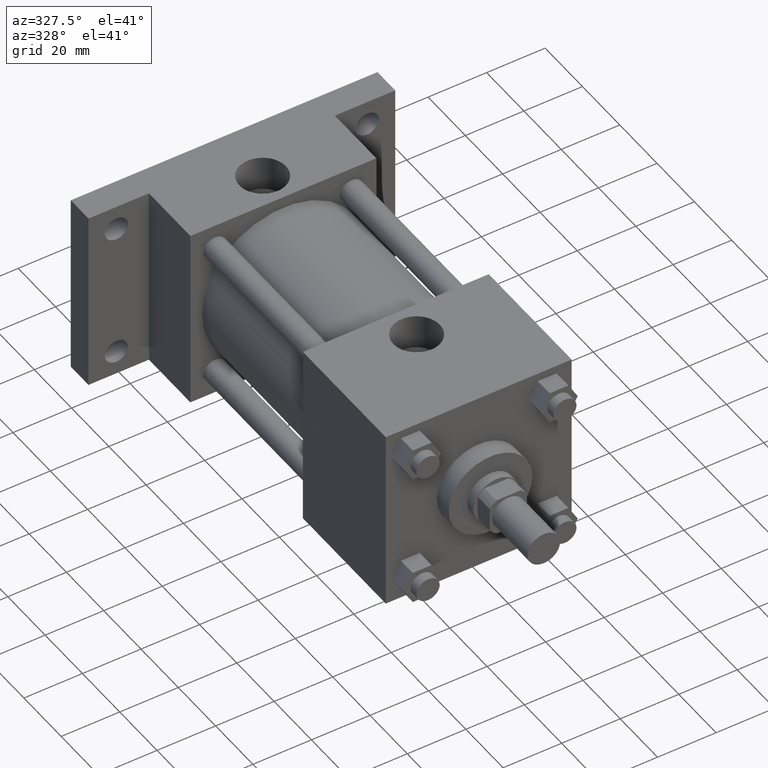
[diagram: clean part render]
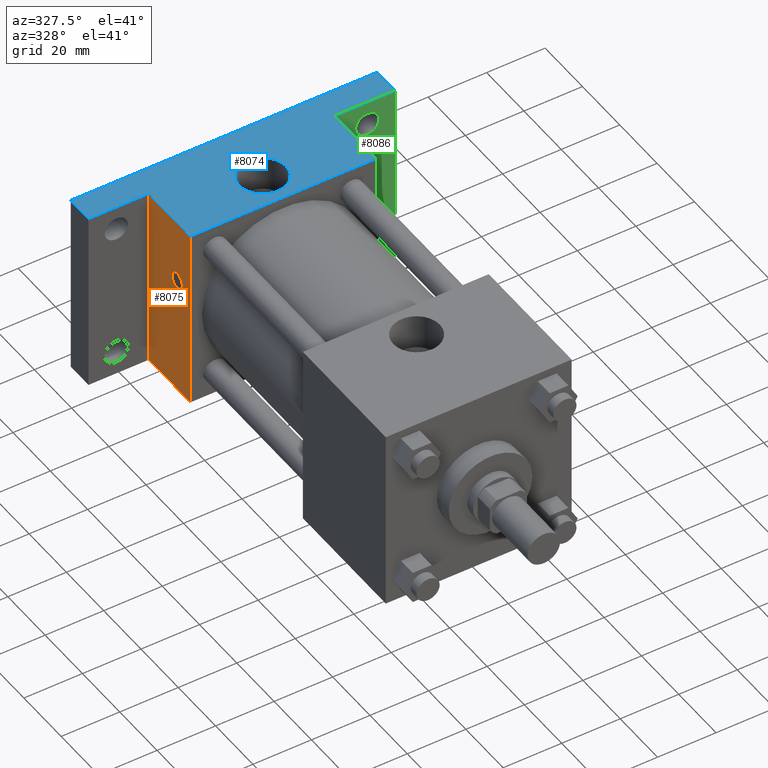
[diagram: same view with three faces highlighted in distinct colors, each labeled with its STEP entity id]
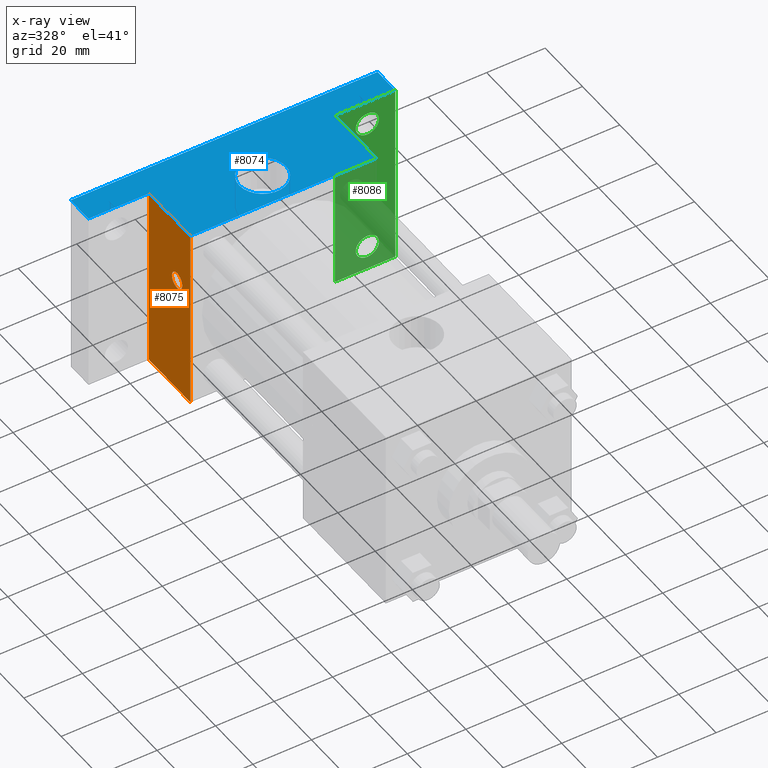
[diagram: x-ray of the same camera — body ghosted, the three highlighted faces saturated]
A machine part, auxiliary view with three faces highlighted in distinct colors.
The next image is the same camera in x-ray (body ghosted, the three faces saturated) — at least one of them is partly hidden behind the body in this view.
Their STEP definitions:

[orange] entity #8075 — the highlighted planar face has unit normal (-1, 0, 0).
#3430=VERTEX_POINT('',#3432);
#3432=CARTESIAN_POINT('',(-3.175000000E+001,1.206500000E+002,-3.175000000E+001));
#3446=VERTEX_POINT('',#3447);
#3447=CARTESIAN_POINT('',(-3.175000000E+001,1.206500000E+002,3.175000000E+001));
#3448=EDGE_CURVE('',#3446,#3430,#3449,.T.);
#3449=LINE('',#3450,#3451);
#3450=CARTESIAN_POINT('',(-3.175000000E+001,1.206500000E+002,3.175000000E+001));
#3451=VECTOR('',#3452,1.0E+000);
#3452=DIRECTION('',(0.0E+000,0.0E+000,-1.0E+000));
#3498=EDGE_CURVE('',#3503,#3430,#3499,.T.);
#3499=LINE('',#3500,#3501);
#3500=CARTESIAN_POINT('',(-3.175000000E+001,1.428750000E+002,-3.175000000E+001));
#3501=VECTOR('',#3502,1.0E+000);
#3502=DIRECTION('',(0.0E+000,-1.0E+000,0.0E+000));
#3503=VERTEX_POINT('',#3504);
#3504=CARTESIAN_POINT('',(-3.175000000E+001,1.428750000E+002,-3.175000000E+001));
#3603=VERTEX_POINT('',#3604);
#3604=CARTESIAN_POINT('',(-3.175000000E+001,1.428750000E+002,3.175000000E+001));
#3605=EDGE_CURVE('',#3603,#3446,#3606,.T.);
#3606=LINE('',#3607,#3608);
#3607=CARTESIAN_POINT('',(-3.175000000E+001,1.428750000E+002,3.175000000E+001));
#3608=VECTOR('',#3609,1.0E+000);
#3609=DIRECTION('',(0.0E+000,-1.0E+000,0.0E+000));
#3624=FACE_OUTER_BOUND('',#3626,.T.);
#3625=FACE_BOUND('',#3627,.T.);
#3626=EDGE_LOOP('',(#3628,#3629,#3630,#3631));
#3627=EDGE_LOOP('',(#3637));
#3628=ORIENTED_EDGE('',*,*,#3448,.F.);
#3629=ORIENTED_EDGE('',*,*,#3605,.F.);
#3630=ORIENTED_EDGE('',*,*,#3632,.T.);
#3631=ORIENTED_EDGE('',*,*,#3498,.T.);
#3632=EDGE_CURVE('',#3603,#3503,#3633,.T.);
#3633=LINE('',#3634,#3635);
#3634=CARTESIAN_POINT('',(-3.175000000E+001,1.428750000E+002,3.175000000E+001));
#3635=VECTOR('',#3636,1.0E+000);
#3636=DIRECTION('',(0.0E+000,0.0E+000,-1.0E+000));
#3637=ORIENTED_EDGE('',*,*,#3638,.T.);
#3638=EDGE_CURVE('',#3644,#3644,#3639,.T.);
#3639=CIRCLE('',#3640,2.778125000E+000);
#3640=AXIS2_PLACEMENT_3D('',#3641,#3642,#3643);
#3641=CARTESIAN_POINT('',(-3.175000000E+001,1.277874000E+002,9.525000000E+000));
#3642=DIRECTION('',(1.0E+000,0.0E+000,0.0E+000));
#3643=DIRECTION('',(0.0E+000,-1.0E+000,0.0E+000));
#3644=VERTEX_POINT('',#3645);
#3645=CARTESIAN_POINT('',(-3.175000000E+001,1.250092750E+002,9.525000000E+000));
#3646=PLANE('',#3647);
#3647=AXIS2_PLACEMENT_3D('',#3648,#3649,#3650);
#3648=CARTESIAN_POINT('',(-3.175000000E+001,1.428750000E+002,3.175000000E+001));
#3649=DIRECTION('',(-1.0E+000,0.0E+000,0.0E+000));
#3650=DIRECTION('',(0.0E+000,0.0E+000,1.0E+000));
#8075=ADVANCED_FACE('',(#3624,#3625),#3646,.T.);

[blue] entity #8074 — the highlighted planar face has unit normal (0, 0, 1).
#3439=VERTEX_POINT('',#3440);
#3440=CARTESIAN_POINT('',(3.175000000E+001,1.206500000E+002,3.175000000E+001));
#3441=EDGE_CURVE('',#3439,#3446,#3442,.T.);
#3442=LINE('',#3443,#3444);
#3443=CARTESIAN_POINT('',(3.175000000E+001,1.206500000E+002,3.175000000E+001));
#3444=VECTOR('',#3445,1.0E+000);
#3445=DIRECTION('',(-1.0E+000,0.0E+000,0.0E+000));
#3446=VERTEX_POINT('',#3447);
#3447=CARTESIAN_POINT('',(-3.175000000E+001,1.206500000E+002,3.175000000E+001));
#3555=FACE_OUTER_BOUND('',#3557,.T.);
#3556=FACE_BOUND('',#3558,.T.);
#3557=EDGE_LOOP('',(#3559,#3560,#3561,#3562,#3563,#3564,#3565,#3566));
#3558=EDGE_LOOP('',(#3610));
#3559=ORIENTED_EDGE('',*,*,#3441,.F.);
#3560=ORIENTED_EDGE('',*,*,#3567,.F.);
#3561=ORIENTED_EDGE('',*,*,#3574,.F.);
#3562=ORIENTED_EDGE('',*,*,#3581,.F.);
#3563=ORIENTED_EDGE('',*,*,#3588,.T.);
#3564=ORIENTED_EDGE('',*,*,#3595,.T.);
#3565=ORIENTED_EDGE('',*,*,#3602,.F.);
#3566=ORIENTED_EDGE('',*,*,#3605,.T.);
#3567=EDGE_CURVE('',#3572,#3439,#3568,.T.);
#3568=LINE('',#3569,#3570);
#3569=CARTESIAN_POINT('',(3.175000000E+001,1.428750000E+002,3.175000000E+001));
#3570=VECTOR('',#3571,1.0E+000);
#3571=DIRECTION('',(0.0E+000,-1.0E+000,0.0E+000));
#3572=VERTEX_POINT('',#3573);
#3573=CARTESIAN_POINT('',(3.175000000E+001,1.428750000E+002,3.175000000E+001));
#3574=EDGE_CURVE('',#3579,#3572,#3575,.T.);
#3575=LINE('',#3576,#3577);
#3576=CARTESIAN_POINT('',(5.238750000E+001,1.428750000E+002,3.175000000E+001));
#3577=VECTOR('',#3578,1.0E+000);
#3578=DIRECTION('',(-1.0E+000,0.0E+000,0.0E+000));
#3579=VERTEX_POINT('',#3580);
#3580=CARTESIAN_POINT('',(5.238750000E+001,1.428750000E+002,3.175000000E+001));
#3581=EDGE_CURVE('',#3586,#3579,#3582,.T.);
#3582=LINE('',#3583,#3584);
#3583=CARTESIAN_POINT('',(5.238750000E+001,1.524000000E+002,3.175000000E+001));
#3584=VECTOR('',#3585,1.0E+000);
#3585=DIRECTION('',(0.0E+000,-1.0E+000,0.0E+000));
#3586=VERTEX_POINT('',#3587);
#3587=CARTESIAN_POINT('',(5.238750000E+001,1.524000000E+002,3.175000000E+001));
#3588=EDGE_CURVE('',#3586,#3593,#3589,.T.);
#3589=LINE('',#3590,#3591);
#3590=CARTESIAN_POINT('',(5.238750000E+001,1.524000000E+002,3.175000000E+001));
#3591=VECTOR('',#3592,1.0E+000);
#3592=DIRECTION('',(-1.0E+000,0.0E+000,0.0E+000));
#3593=VERTEX_POINT('',#3594);
#3594=CARTESIAN_POINT('',(-5.238750000E+001,1.524000000E+002,3.175000000E+001));
#3595=EDGE_CURVE('',#3593,#3600,#3596,.T.);
#3596=LINE('',#3597,#3598);
#3597=CARTESIAN_POINT('',(-5.238750000E+001,1.524000000E+002,3.175000000E+001));
#3598=VECTOR('',#3599,1.0E+000);
#3599=DIRECTION('',(0.0E+000,-1.0E+000,0.0E+000));
#3600=VERTEX_POINT('',#3601);
#3601=CARTESIAN_POINT('',(-5.238750000E+001,1.428750000E+002,3.175000000E+001));
#3602=EDGE_CURVE('',#3603,#3600,#3575,.T.);
#3603=VERTEX_POINT('',#3604);
#3604=CARTESIAN_POINT('',(-3.175000000E+001,1.428750000E+002,3.175000000E+001));
#3605=EDGE_CURVE('',#3603,#3446,#3606,.T.);
#3606=LINE('',#3607,#3608);
#3607=CARTESIAN_POINT('',(-3.175000000E+001,1.428750000E+002,3.175000000E+001));
#3608=VECTOR('',#3609,1.0E+000);
#3609=DIRECTION('',(0.0E+000,-1.0E+000,0.0E+000));
#3610=ORIENTED_EDGE('',*,*,#3611,.T.);
#3611=EDGE_CURVE('',#3617,#3617,#3612,.T.);
#3612=CIRCLE('',#3613,7.963027000E+000);
#3613=AXIS2_PLACEMENT_3D('',#3614,#3615,#3616);
#3614=CARTESIAN_POINT('',(0.000000000E+000,1.317625000E+002,3.175000000E+001));
#3615=DIRECTION('',(0.0E+000,0.0E+000,-1.0E+000));
#3616=DIRECTION('',(1.0E+000,0.0E+000,0.0E+000));
#3617=VERTEX_POINT('',#3618);
#3618=CARTESIAN_POINT('',(7.963027000E+000,1.317625000E+002,3.175000000E+001));
#3619=PLANE('',#3620);
#3620=AXIS2_PLACEMENT_3D('',#3621,#3622,#3623);
#3621=CARTESIAN_POINT('',(3.175000000E+001,1.428750000E+002,3.175000000E+001));
#3622=DIRECTION('',(0.0E+000,0.0E+000,1.0E+000));
#3623=DIRECTION('',(1.0E+000,0.0E+000,0.0E+000));
#8074=ADVANCED_FACE('',(#3555,#3556),#3619,.T.);

[green] entity #8086 — the highlighted planar face has unit normal (0, -1, 0).
#3506=LINE('',#3507,#3508);
#3507=CARTESIAN_POINT('',(-5.238750000E+001,1.428750000E+002,-3.175000000E+001));
#3508=VECTOR('',#3509,1.0E+000);
#3509=DIRECTION('',(1.0E+000,0.0E+000,0.0E+000));
#3531=VERTEX_POINT('',#3532);
#3532=CARTESIAN_POINT('',(5.238750000E+001,1.428750000E+002,-3.175000000E+001));
#3533=EDGE_CURVE('',#3534,#3531,#3506,.T.);
#3534=VERTEX_POINT('',#3535);
#3535=CARTESIAN_POINT('',(3.175000000E+001,1.428750000E+002,-3.175000000E+001));
#3572=VERTEX_POINT('',#3573);
#3573=CARTESIAN_POINT('',(3.175000000E+001,1.428750000E+002,3.175000000E+001));
#3574=EDGE_CURVE('',#3579,#3572,#3575,.T.);
#3575=LINE('',#3576,#3577);
#3576=CARTESIAN_POINT('',(5.238750000E+001,1.428750000E+002,3.175000000E+001));
#3577=VECTOR('',#3578,1.0E+000);
#3578=DIRECTION('',(-1.0E+000,0.0E+000,0.0E+000));
#3579=VERTEX_POINT('',#3580);
#3580=CARTESIAN_POINT('',(5.238750000E+001,1.428750000E+002,3.175000000E+001));
#3659=EDGE_CURVE('',#3534,#3572,#3660,.T.);
#3660=LINE('',#3661,#3662);
#3661=CARTESIAN_POINT('',(3.175000000E+001,1.428750000E+002,-3.175000000E+001));
#3662=VECTOR('',#3663,1.0E+000);
#3663=DIRECTION('',(0.0E+000,0.0E+000,1.0E+000));
#3863=PLANE('',#3864);
#3864=AXIS2_PLACEMENT_3D('',#3865,#3866,#3867);
#3865=CARTESIAN_POINT('',(5.238750000E+001,1.428750000E+002,-3.175000000E+001));
#3866=DIRECTION('',(0.0E+000,-1.0E+000,0.0E+000));
#3867=DIRECTION('',(0.0E+000,0.0E+000,-1.0E+000));
#3868=FACE_OUTER_BOUND('',#3871,.T.);
#3869=FACE_BOUND('',#3872,.T.);
#3870=FACE_BOUND('',#3873,.T.);
#3871=EDGE_LOOP('',(#3874));
#3872=EDGE_LOOP('',(#3883));
#3873=EDGE_LOOP('',(#3892,#3893,#3894,#3895));
#3874=ORIENTED_EDGE('',*,*,#3875,.T.);
#3875=EDGE_CURVE('',#3881,#3881,#3876,.T.);
#3876=CIRCLE('',#3877,3.968750000E+000);
#3877=AXIS2_PLACEMENT_3D('',#3878,#3879,#3880);
#3878=CARTESIAN_POINT('',(4.286250000E+001,1.428750000E+002,-2.336800000E+001));
#3879=DIRECTION('',(0.0E+000,1.0E+000,0.0E+000));
#3880=DIRECTION('',(0.0E+000,0.0E+000,1.0E+000));
#3881=VERTEX_POINT('',#3882);
#3882=CARTESIAN_POINT('',(4.286250000E+001,1.428750000E+002,-1.939925000E+001));
#3883=ORIENTED_EDGE('',*,*,#3884,.T.);
#3884=EDGE_CURVE('',#3890,#3890,#3885,.T.);
#3885=CIRCLE('',#3886,3.968750000E+000);
#3886=AXIS2_PLACEMENT_3D('',#3887,#3888,#3889);
#3887=CARTESIAN_POINT('',(4.286250000E+001,1.428750000E+002,2.336800000E+001));
#3888=DIRECTION('',(0.0E+000,1.0E+000,0.0E+000));
#3889=DIRECTION('',(0.0E+000,0.0E+000,1.0E+000));
#3890=VERTEX_POINT('',#3891);
#3891=CARTESIAN_POINT('',(4.286250000E+001,1.428750000E+002,2.733675000E+001));
#3892=ORIENTED_EDGE('',*,*,#3659,.F.);
#3893=ORIENTED_EDGE('',*,*,#3533,.T.);
#3894=ORIENTED_EDGE('',*,*,#3896,.T.);
#3895=ORIENTED_EDGE('',*,*,#3574,.T.);
#3896=EDGE_CURVE('',#3531,#3579,#3897,.T.);
#3897=LINE('',#3898,#3899);
#3898=CARTESIAN_POINT('',(5.238750000E+001,1.428750000E+002,-3.175000000E+001));
#3899=VECTOR('',#3900,1.0E+000);
#3900=DIRECTION('',(0.0E+000,0.0E+000,1.0E+000));
#8086=ADVANCED_FACE('',(#3868,#3869,#3870),#3863,.T.);